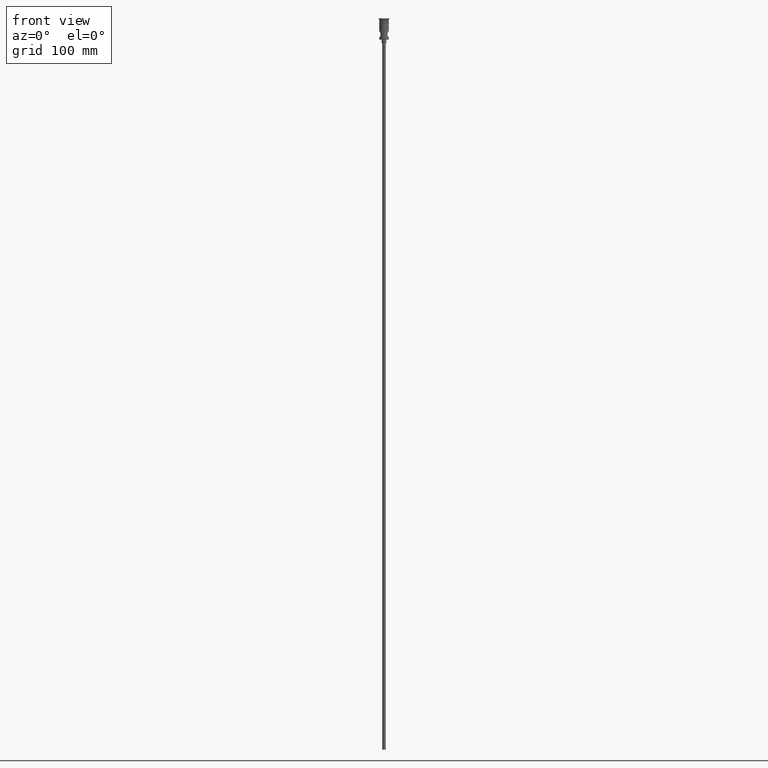
[diagram: clean part render]
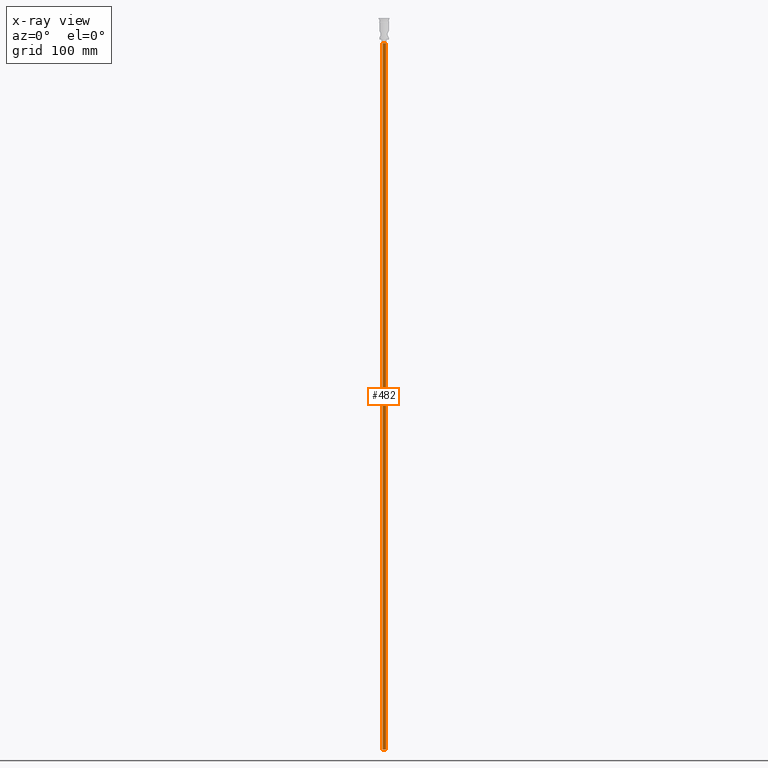
[diagram: x-ray — body ghosted, one internal face saturated and labeled with its STEP entity id]
A machine part, front view, then the same camera in x-ray: the body is ghosted and one INTERNAL B-rep face — a face not visible from any outside direction — is saturated and labeled: STEP entity #482.
In plain terms, the highlighted cylindrical surface (edge-blend (fillet) strip) has radius 1.5 mm, axis along (-0, -0, 1).
Its self-contained STEP definition (entity closure, byte-faithful):
#1 = CARTESIAN_POINT ( 'NONE',  ( -1.500000000000000222, 1.836970198721030181E-16, -20.99999999999999645 ) ) ;
#3 = EDGE_LOOP ( 'NONE', ( #26, #1146, #706, #441 ) ) ;
#26 = ORIENTED_EDGE ( 'NONE', *, *, #1088, .F. ) ;
#43 = CARTESIAN_POINT ( 'NONE',  ( 0.000000000000000000, 0.000000000000000000, -20.99999999999999645 ) ) ;
#57 = CARTESIAN_POINT ( 'NONE',  ( -1.500000000000000222, 1.836970198721030181E-16, -618.0000000000000000 ) ) ;
#96 = AXIS2_PLACEMENT_3D ( 'NONE', #43, #917, #807 ) ;
#213 = CIRCLE ( 'NONE', #96, 1.500000000000000222 ) ;
#256 = FACE_OUTER_BOUND ( 'NONE', #3, .T. ) ;
#277 = DIRECTION ( 'NONE',  ( -0.000000000000000000, -0.000000000000000000, 1.000000000000000000 ) ) ;
#280 = CARTESIAN_POINT ( 'NONE',  ( 0.000000000000000000, 0.000000000000000000, -618.0000000000000000 ) ) ;
#285 = VECTOR ( 'NONE', #277, 1000.000000000000000 ) ;
#290 = DIRECTION ( 'NONE',  ( -0.000000000000000000, -0.000000000000000000, 1.000000000000000000 ) ) ;
#313 = CARTESIAN_POINT ( 'NONE',  ( 0.000000000000000000, 0.000000000000000000, -618.0000000000000000 ) ) ;
#334 = CARTESIAN_POINT ( 'NONE',  ( 1.500000000000000222, 0.000000000000000000, -20.99999999999999645 ) ) ;
#349 = VERTEX_POINT ( 'NONE', #57 ) ;
#361 = LINE ( 'NONE', #696, #1225 ) ;
#424 = CARTESIAN_POINT ( 'NONE',  ( 1.500000000000000222, 0.000000000000000000, -618.0000000000000000 ) ) ;
#441 = ORIENTED_EDGE ( 'NONE', *, *, #676, .F. ) ;
#482 = ADVANCED_FACE ( 'NONE', ( #256 ), #1142, .T. ) ;
#493 = AXIS2_PLACEMENT_3D ( 'NONE', #280, #290, #1151 ) ;
#542 = DIRECTION ( 'NONE',  ( -1.000000000000000000, 0.000000000000000000, 0.000000000000000000 ) ) ;
#545 = EDGE_CURVE ( 'NONE', #691, #987, #213, .T. ) ;
#566 = CARTESIAN_POINT ( 'NONE',  ( -1.500000000000000222, 1.836970198721030181E-16, -618.0000000000000000 ) ) ;
#578 = EDGE_CURVE ( 'NONE', #349, #691, #1426, .T. ) ;
#665 = CIRCLE ( 'NONE', #1297, 1.500000000000000222 ) ;
#676 = EDGE_CURVE ( 'NONE', #1349, #987, #361, .T. ) ;
#691 = VERTEX_POINT ( 'NONE', #1 ) ;
#696 = CARTESIAN_POINT ( 'NONE',  ( 1.500000000000000222, 0.000000000000000000, -618.0000000000000000 ) ) ;
#706 = ORIENTED_EDGE ( 'NONE', *, *, #545, .T. ) ;
#757 = DIRECTION ( 'NONE',  ( 0.000000000000000000, 0.000000000000000000, -1.000000000000000000 ) ) ;
#807 = DIRECTION ( 'NONE',  ( -1.000000000000000000, 0.000000000000000000, 0.000000000000000000 ) ) ;
#917 = DIRECTION ( 'NONE',  ( 0.000000000000000000, 0.000000000000000000, -1.000000000000000000 ) ) ;
#987 = VERTEX_POINT ( 'NONE', #334 ) ;
#1088 = EDGE_CURVE ( 'NONE', #349, #1349, #665, .T. ) ;
#1122 = DIRECTION ( 'NONE',  ( -0.000000000000000000, -0.000000000000000000, 1.000000000000000000 ) ) ;
#1142 = CYLINDRICAL_SURFACE ( 'NONE', #493, 1.500000000000000222 ) ;
#1146 = ORIENTED_EDGE ( 'NONE', *, *, #578, .T. ) ;
#1151 = DIRECTION ( 'NONE',  ( 1.000000000000000000, 0.000000000000000000, 0.000000000000000000 ) ) ;
#1225 = VECTOR ( 'NONE', #1122, 1000.000000000000000 ) ;
#1297 = AXIS2_PLACEMENT_3D ( 'NONE', #313, #757, #542 ) ;
#1349 = VERTEX_POINT ( 'NONE', #424 ) ;
#1426 = LINE ( 'NONE', #566, #285 ) ;